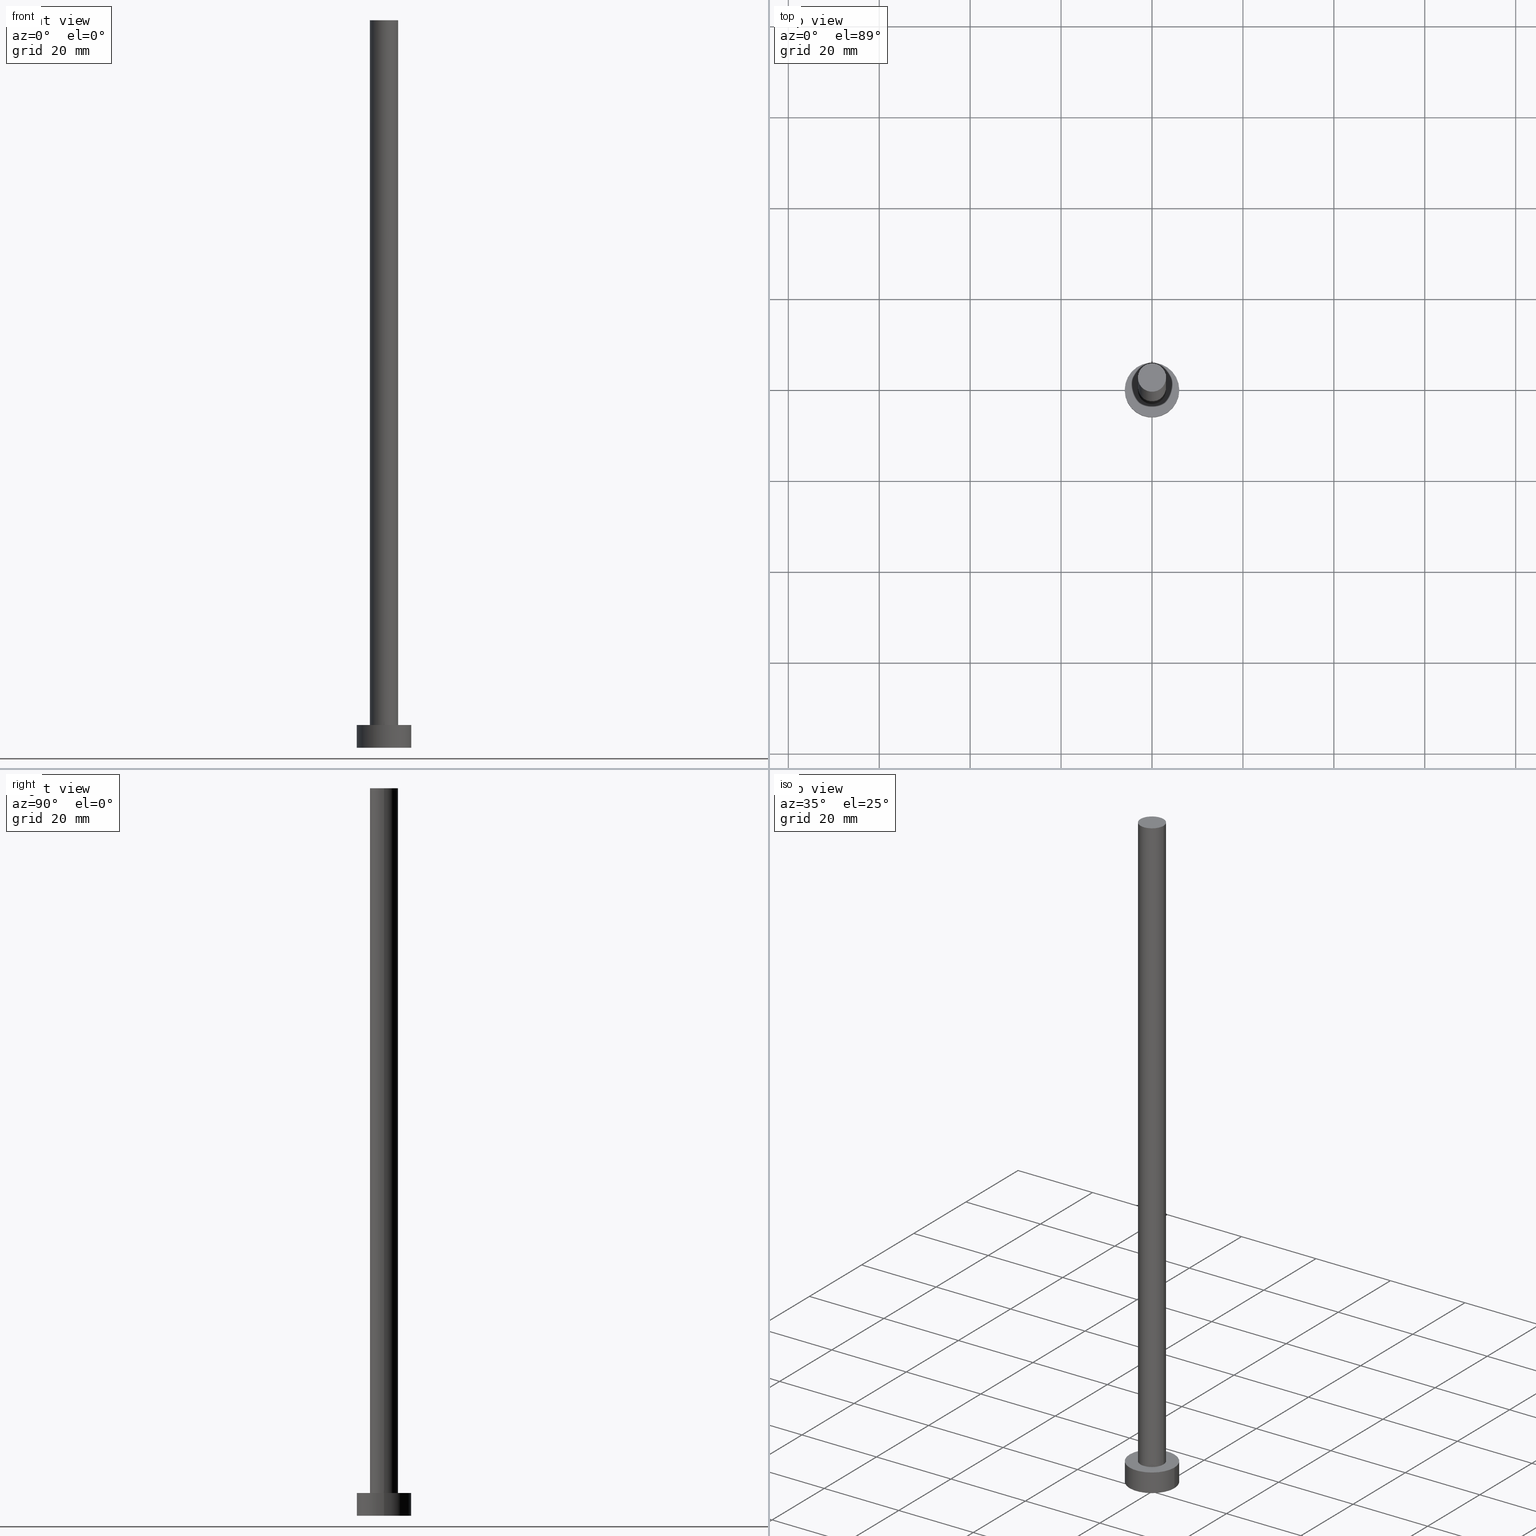
[diagram: canonical four-view strip — front | top / right | iso, engineering-drawing reading convention]
A machine part, canonical four-view strip (front | top / right | iso — engineering-drawing reading convention). The complete STEP part file that produces these views, byte-faithful:
ISO-10303-21;
HEADER;
FILE_DESCRIPTION (( 'STEP AP203' ),
    '1' );
FILE_NAME ('2f2b.STEP',
    '2023-02-13T15:42:57',
    ( '' ),
    ( '' ),
    'SwSTEP 2.0',
    'SolidWorks 2019',
    '' );
FILE_SCHEMA (( 'CONFIG_CONTROL_DESIGN' ));
ENDSEC;

DATA;
#1 = PERSON_AND_ORGANIZATION_ROLE ( 'creator' ) ;
#2 = APPROVAL ( #209, 'NEUR�EN�' ) ;
#3 = VECTOR ( 'NONE', #44, 1000.000000000000000 ) ;
#4 = PERSON_AND_ORGANIZATION_ROLE ( 'creator' ) ;
#5 = EDGE_CURVE ( 'NONE', #112, #130, #16, .T. ) ;
#6 = AXIS2_PLACEMENT_3D ( 'NONE', #60, #85, #42 ) ;
#7 = DIRECTION ( 'NONE',  ( 1.000000000000000000, 0.000000000000000000, -0.000000000000000000 ) ) ;
#8 = PERSON_AND_ORGANIZATION_ROLE ( 'design_supplier' ) ;
#9 = VERTEX_POINT ( 'NONE', #236 ) ;
#10 = ORIENTED_EDGE ( 'NONE', *, *, #141, .T. ) ;
#11 = CIRCLE ( 'NONE', #50, 3.100000000000000089 ) ;
#12 = APPROVAL ( #241, 'NEUR�EN�' ) ;
#13 = EDGE_LOOP ( 'NONE', ( #167, #76, #142, #199 ) ) ;
#14 = DATE_TIME_ROLE ( 'classification_date' ) ;
#15 = CARTESIAN_POINT ( 'NONE',  ( 0.000000000000000000, 0.000000000000000000, 5.000000000000000000 ) ) ;
#16 = CIRCLE ( 'NONE', #124, 3.100000000000000089 ) ;
#17 = DIRECTION ( 'NONE',  ( 1.000000000000000000, 0.000000000000000000, 0.000000000000000000 ) ) ;
#18 = CC_DESIGN_APPROVAL ( #212, ( #46 ) ) ;
#19 = AXIS2_PLACEMENT_3D ( 'NONE', #159, #193, #218 ) ;
#20 = DIRECTION ( 'NONE',  ( 0.000000000000000000, 0.000000000000000000, 1.000000000000000000 ) ) ;
#21 = FACE_OUTER_BOUND ( 'NONE', #34, .T. ) ;
#22 = PERSON_AND_ORGANIZATION ( #145, #208 ) ;
#23 = DIRECTION ( 'NONE',  ( 1.000000000000000000, 0.000000000000000000, 0.000000000000000000 ) ) ;
#24 = EDGE_CURVE ( 'NONE', #223, #255, #11, .T. ) ;
#25 = CARTESIAN_POINT ( 'NONE',  ( -3.100000000000000089, 0.000000000000000000, 5.000000000000000000 ) ) ;
#26 = AXIS2_PLACEMENT_3D ( 'NONE', #84, #169, #7 ) ;
#27 = DIRECTION ( 'NONE',  ( 1.000000000000000000, 0.000000000000000000, -0.000000000000000000 ) ) ;
#28 = PRODUCT_DEFINITION_SHAPE ( 'NONE', 'NONE',  #109 ) ;
#29 = VERTEX_POINT ( 'NONE', #192 ) ;
#30 = EDGE_CURVE ( 'NONE', #9, #226, #77, .T. ) ;
#31 = PERSON_AND_ORGANIZATION ( #145, #208 ) ;
#32 = CALENDAR_DATE ( 2023, 13, 2 ) ;
#33 = EDGE_LOOP ( 'NONE', ( #242, #178 ) ) ;
#34 = EDGE_LOOP ( 'NONE', ( #73, #162 ) ) ;
#35 = CC_DESIGN_DATE_AND_TIME_ASSIGNMENT ( #205, #14, ( #177 ) ) ;
#36 = EDGE_LOOP ( 'NONE', ( #125, #69 ) ) ;
#37 = PERSON_AND_ORGANIZATION_ROLE ( 'classification_officer' ) ;
#38 =( GEOMETRIC_REPRESENTATION_CONTEXT ( 3 ) GLOBAL_UNCERTAINTY_ASSIGNED_CONTEXT ( ( #81 ) ) GLOBAL_UNIT_ASSIGNED_CONTEXT ( ( #93, #151, #116 ) ) REPRESENTATION_CONTEXT ( 'NONE', 'WORKASPACE' ) );
#39 = CC_DESIGN_PERSON_AND_ORGANIZATION_ASSIGNMENT ( #238, #8, ( #46 ) ) ;
#40 = LINE ( 'NONE', #63, #188 ) ;
#41 = CALENDAR_DATE ( 2023, 13, 2 ) ;
#42 = DIRECTION ( 'NONE',  ( -1.000000000000000000, 0.000000000000000000, 0.000000000000000000 ) ) ;
#43 = APPROVAL_DATE_TIME ( #217, #2 ) ;
#44 = DIRECTION ( 'NONE',  ( -0.000000000000000000, -0.000000000000000000, -1.000000000000000000 ) ) ;
#45 = CARTESIAN_POINT ( 'NONE',  ( 0.000000000000000000, 0.000000000000000000, 0.000000000000000000 ) ) ;
#46 = PRODUCT_DEFINITION_FORMATION_WITH_SPECIFIED_SOURCE ( 'LIBOVOLN�', '', #181, .NOT_KNOWN. ) ;
#47 = ADVANCED_FACE ( 'NONE', ( #106 ), #216, .T. ) ;
#48 = DIRECTION ( 'NONE',  ( 0.000000000000000000, 0.000000000000000000, 1.000000000000000000 ) ) ;
#49 = DATE_AND_TIME ( #92, #91 ) ;
#50 = AXIS2_PLACEMENT_3D ( 'NONE', #248, #66, #197 ) ;
#51 = CC_DESIGN_DATE_AND_TIME_ASSIGNMENT ( #198, #202, ( #109 ) ) ;
#52 = DIRECTION ( 'NONE',  ( 1.000000000000000000, 0.000000000000000000, 0.000000000000000000 ) ) ;
#53 = CLOSED_SHELL ( 'NONE', ( #47, #61, #163, #240, #227, #148, #232 ) ) ;
#54 = COORDINATED_UNIVERSAL_TIME_OFFSET ( 1, 0, .AHEAD. ) ;
#55 = APPLICATION_CONTEXT ( 'configuration controlled 3d designs of mechanical parts and assemblies' ) ;
#56 = ADVANCED_BREP_SHAPE_REPRESENTATION ( '2f2b', ( #180, #78 ), #38 ) ;
#57 = CYLINDRICAL_SURFACE ( 'NONE', #19, 3.100000000000000089 ) ;
#58 = DIRECTION ( 'NONE',  ( 1.000000000000000000, 0.000000000000000000, 0.000000000000000000 ) ) ;
#59 = FACE_OUTER_BOUND ( 'NONE', #186, .T. ) ;
#60 = CARTESIAN_POINT ( 'NONE',  ( 0.000000000000000000, 0.000000000000000000, 160.0000000000000000 ) ) ;
#61 = ADVANCED_FACE ( 'NONE', ( #118 ), #229, .T. ) ;
#62 = LOCAL_TIME ( 16, 42, 57.00000000000000000, #135 ) ;
#63 = CARTESIAN_POINT ( 'NONE',  ( -6.000000000000000888, 0.000000000000000000, 5.000000000000000000 ) ) ;
#64 = PERSON_AND_ORGANIZATION ( #145, #208 ) ;
#65 = DIRECTION ( 'NONE',  ( 0.000000000000000000, 0.000000000000000000, 1.000000000000000000 ) ) ;
#66 = DIRECTION ( 'NONE',  ( 0.000000000000000000, 0.000000000000000000, 1.000000000000000000 ) ) ;
#67 = DESIGN_CONTEXT ( 'detailed design', #55, 'design' ) ;
#68 = APPROVAL_STATUS ( 'not_yet_approved' ) ;
#69 = ORIENTED_EDGE ( 'NONE', *, *, #30, .F. ) ;
#70 = APPLICATION_CONTEXT ( 'configuration controlled 3d designs of mechanical parts and assemblies' ) ;
#71 = ORIENTED_EDGE ( 'NONE', *, *, #195, .T. ) ;
#72 = EDGE_CURVE ( 'NONE', #223, #112, #251, .T. ) ;
#73 = ORIENTED_EDGE ( 'NONE', *, *, #113, .T. ) ;
#74 = CC_DESIGN_APPROVAL ( #2, ( #109 ) ) ;
#75 = LOCAL_TIME ( 16, 42, 57.00000000000000000, #54 ) ;
#76 = ORIENTED_EDGE ( 'NONE', *, *, #157, .T. ) ;
#77 = CIRCLE ( 'NONE', #183, 6.000000000000000888 ) ;
#78 = AXIS2_PLACEMENT_3D ( 'NONE', #189, #20, #233 ) ;
#79 = DIRECTION ( 'NONE',  ( 0.000000000000000000, 0.000000000000000000, 1.000000000000000000 ) ) ;
#80 = CARTESIAN_POINT ( 'NONE',  ( 0.000000000000000000, 0.000000000000000000, 0.000000000000000000 ) ) ;
#81 = UNCERTAINTY_MEASURE_WITH_UNIT (LENGTH_MEASURE( 1.000000000000000082E-05 ), #93, 'distance_accuracy_value', 'NONE');
#82 = APPLICATION_PROTOCOL_DEFINITION ( 'international standard', 'config_control_design', 1994, #55 ) ;
#83 = ORIENTED_EDGE ( 'NONE', *, *, #72, .F. ) ;
#84 = CARTESIAN_POINT ( 'NONE',  ( 0.000000000000000000, 0.000000000000000000, 5.000000000000000000 ) ) ;
#85 = DIRECTION ( 'NONE',  ( -0.000000000000000000, -0.000000000000000000, -1.000000000000000000 ) ) ;
#86 = LINE ( 'NONE', #137, #117 ) ;
#87 = AXIS2_PLACEMENT_3D ( 'NONE', #158, #245, #194 ) ;
#88 = CARTESIAN_POINT ( 'NONE',  ( 0.000000000000000000, 0.000000000000000000, 5.000000000000000000 ) ) ;
#89 = CARTESIAN_POINT ( 'NONE',  ( 3.100000000000000089, 3.796405077356794918E-16, 160.0000000000000000 ) ) ;
#90 = APPROVAL_DATE_TIME ( #49, #212 ) ;
#91 = LOCAL_TIME ( 16, 42, 57.00000000000000000, #253 ) ;
#92 = CALENDAR_DATE ( 2023, 13, 2 ) ;
#93 =( LENGTH_UNIT ( ) NAMED_UNIT ( * ) SI_UNIT ( .MILLI., .METRE. ) );
#94 = PERSON_AND_ORGANIZATION ( #145, #208 ) ;
#95 = CALENDAR_DATE ( 2023, 13, 2 ) ;
#96 = DATE_AND_TIME ( #32, #244 ) ;
#97 = CC_DESIGN_PERSON_AND_ORGANIZATION_ASSIGNMENT ( #22, #1, ( #109 ) ) ;
#98 = CARTESIAN_POINT ( 'NONE',  ( -3.100000000000000089, 0.000000000000000000, 160.0000000000000000 ) ) ;
#99 = APPLICATION_PROTOCOL_DEFINITION ( 'international standard', 'config_control_design', 1994, #70 ) ;
#100 = PLANE ( 'NONE',  #26 ) ;
#101 = FACE_OUTER_BOUND ( 'NONE', #36, .T. ) ;
#102 = CARTESIAN_POINT ( 'NONE',  ( 0.000000000000000000, 0.000000000000000000, 5.000000000000000000 ) ) ;
#103 = LOCAL_TIME ( 16, 42, 57.00000000000000000, #139 ) ;
#104 = AXIS2_PLACEMENT_3D ( 'NONE', #230, #48, #58 ) ;
#105 = PERSON_AND_ORGANIZATION ( #145, #208 ) ;
#106 = FACE_OUTER_BOUND ( 'NONE', #243, .T. ) ;
#107 = APPROVAL_ROLE ( '' ) ;
#108 = APPROVAL_PERSON_ORGANIZATION ( #105, #212, #107 ) ;
#109 = PRODUCT_DEFINITION ( 'NEZN�M�', '', #46, #67 ) ;
#110 = ORIENTED_EDGE ( 'NONE', *, *, #157, .F. ) ;
#111 = EDGE_LOOP ( 'NONE', ( #110, #115, #71, #149 ) ) ;
#112 = VERTEX_POINT ( 'NONE', #220 ) ;
#113 = EDGE_CURVE ( 'NONE', #29, #146, #249, .T. ) ;
#114 = ORIENTED_EDGE ( 'NONE', *, *, #5, .T. ) ;
#115 = ORIENTED_EDGE ( 'NONE', *, *, #113, .F. ) ;
#116 =( NAMED_UNIT ( * ) SI_UNIT ( $, .STERADIAN. ) SOLID_ANGLE_UNIT ( ) );
#117 = VECTOR ( 'NONE', #156, 1000.000000000000000 ) ;
#118 = FACE_OUTER_BOUND ( 'NONE', #13, .T. ) ;
#119 = DIRECTION ( 'NONE',  ( -0.000000000000000000, -0.000000000000000000, -1.000000000000000000 ) ) ;
#120 = DIRECTION ( 'NONE',  ( 0.000000000000000000, 0.000000000000000000, 1.000000000000000000 ) ) ;
#121 = AXIS2_PLACEMENT_3D ( 'NONE', #154, #190, #215 ) ;
#122 = CARTESIAN_POINT ( 'NONE',  ( 0.000000000000000000, 0.000000000000000000, 160.0000000000000000 ) ) ;
#123 = PRODUCT_RELATED_PRODUCT_CATEGORY ( 'detail', '', ( #181 ) ) ;
#124 = AXIS2_PLACEMENT_3D ( 'NONE', #15, #170, #246 ) ;
#125 = ORIENTED_EDGE ( 'NONE', *, *, #126, .F. ) ;
#126 = EDGE_CURVE ( 'NONE', #226, #9, #213, .T. ) ;
#127 = APPROVAL_ROLE ( '' ) ;
#128 = AXIS2_PLACEMENT_3D ( 'NONE', #250, #65, #27 ) ;
#129 = AXIS2_PLACEMENT_3D ( 'NONE', #45, #120, #17 ) ;
#130 = VERTEX_POINT ( 'NONE', #25 ) ;
#131 = ORIENTED_EDGE ( 'NONE', *, *, #185, .T. ) ;
#132 = PERSON_AND_ORGANIZATION_ROLE ( 'design_owner' ) ;
#133 = DIRECTION ( 'NONE',  ( -0.000000000000000000, -0.000000000000000000, -1.000000000000000000 ) ) ;
#134 = DIRECTION ( 'NONE',  ( 1.000000000000000000, 0.000000000000000000, 0.000000000000000000 ) ) ;
#135 = COORDINATED_UNIVERSAL_TIME_OFFSET ( 1, 0, .AHEAD. ) ;
#136 = CARTESIAN_POINT ( 'NONE',  ( 3.100000000000000089, 3.796405077356794918E-16, 160.0000000000000000 ) ) ;
#137 = CARTESIAN_POINT ( 'NONE',  ( 6.000000000000000888, 7.347880794884120722E-16, 5.000000000000000000 ) ) ;
#138 = CC_DESIGN_PERSON_AND_ORGANIZATION_ASSIGNMENT ( #235, #4, ( #46 ) ) ;
#139 = COORDINATED_UNIVERSAL_TIME_OFFSET ( 1, 0, .AHEAD. ) ;
#140 = CIRCLE ( 'NONE', #172, 6.000000000000000888 ) ;
#141 = EDGE_CURVE ( 'NONE', #130, #112, #196, .T. ) ;
#142 = ORIENTED_EDGE ( 'NONE', *, *, #30, .T. ) ;
#143 = COORDINATED_UNIVERSAL_TIME_OFFSET ( 1, 0, .AHEAD. ) ;
#144 = ORIENTED_EDGE ( 'NONE', *, *, #141, .F. ) ;
#145 = PERSON ( 'NEUR�EN�', 'NEUR�EN�', 'NEUR�EN�', ('NEUR�EN�'), ('NEUR�EN�'), ('NEUR�EN�') ) ;
#146 = VERTEX_POINT ( 'NONE', #210 ) ;
#147 = APPROVAL_DATE_TIME ( #96, #12 ) ;
#148 = ADVANCED_FACE ( 'NONE', ( #59 ), #57, .T. ) ;
#149 = ORIENTED_EDGE ( 'NONE', *, *, #126, .T. ) ;
#150 = APPROVAL_PERSON_ORGANIZATION ( #64, #2, #171 ) ;
#151 =( NAMED_UNIT ( * ) PLANE_ANGLE_UNIT ( ) SI_UNIT ( $, .RADIAN. ) );
#152 = FACE_OUTER_BOUND ( 'NONE', #111, .T. ) ;
#153 = ORIENTED_EDGE ( 'NONE', *, *, #5, .F. ) ;
#154 = CARTESIAN_POINT ( 'NONE',  ( 0.000000000000000000, 0.000000000000000000, 5.000000000000000000 ) ) ;
#155 = DIRECTION ( 'NONE',  ( -0.000000000000000000, -0.000000000000000000, -1.000000000000000000 ) ) ;
#156 = DIRECTION ( 'NONE',  ( -0.000000000000000000, -0.000000000000000000, -1.000000000000000000 ) ) ;
#157 = EDGE_CURVE ( 'NONE', #146, #9, #86, .T. ) ;
#158 = CARTESIAN_POINT ( 'NONE',  ( 0.000000000000000000, 0.000000000000000000, 0.000000000000000000 ) ) ;
#159 = CARTESIAN_POINT ( 'NONE',  ( 0.000000000000000000, 0.000000000000000000, 160.0000000000000000 ) ) ;
#160 = CALENDAR_DATE ( 2023, 13, 2 ) ;
#161 = ORIENTED_EDGE ( 'NONE', *, *, #24, .F. ) ;
#162 = ORIENTED_EDGE ( 'NONE', *, *, #237, .T. ) ;
#163 = ADVANCED_FACE ( 'NONE', ( #152 ), #174, .T. ) ;
#164 = SECURITY_CLASSIFICATION_LEVEL ( 'unclassified' ) ;
#165 = CC_DESIGN_APPROVAL ( #12, ( #177 ) ) ;
#166 = PLANE ( 'NONE',  #87 ) ;
#167 = ORIENTED_EDGE ( 'NONE', *, *, #237, .F. ) ;
#168 = MECHANICAL_CONTEXT ( 'NONE', #70, 'mechanical' ) ;
#169 = DIRECTION ( 'NONE',  ( 0.000000000000000000, 0.000000000000000000, 1.000000000000000000 ) ) ;
#170 = DIRECTION ( 'NONE',  ( 0.000000000000000000, 0.000000000000000000, 1.000000000000000000 ) ) ;
#171 = APPROVAL_ROLE ( '' ) ;
#172 = AXIS2_PLACEMENT_3D ( 'NONE', #254, #79, #134 ) ;
#173 = FACE_OUTER_BOUND ( 'NONE', #33, .T. ) ;
#174 = CYLINDRICAL_SURFACE ( 'NONE', #184, 6.000000000000000888 ) ;
#175 = DIRECTION ( 'NONE',  ( -0.000000000000000000, -0.000000000000000000, -1.000000000000000000 ) ) ;
#176 = CIRCLE ( 'NONE', #222, 3.100000000000000089 ) ;
#177 = SECURITY_CLASSIFICATION ( '', '', #164 ) ;
#178 = ORIENTED_EDGE ( 'NONE', *, *, #24, .T. ) ;
#179 = CARTESIAN_POINT ( 'NONE',  ( -3.100000000000000089, 0.000000000000000000, 160.0000000000000000 ) ) ;
#180 = MANIFOLD_SOLID_BREP ( 'P�idat vysunut�m3', #53 ) ;
#181 = PRODUCT ( '2f2b', '2f2b', '', ( #168 ) ) ;
#182 = ORIENTED_EDGE ( 'NONE', *, *, #185, .F. ) ;
#183 = AXIS2_PLACEMENT_3D ( 'NONE', #80, #221, #23 ) ;
#184 = AXIS2_PLACEMENT_3D ( 'NONE', #88, #133, #231 ) ;
#185 = EDGE_CURVE ( 'NONE', #255, #130, #228, .T. ) ;
#186 = EDGE_LOOP ( 'NONE', ( #83, #207, #131, #10 ) ) ;
#187 = CARTESIAN_POINT ( 'NONE',  ( -6.000000000000000888, 0.000000000000000000, 0.000000000000000000 ) ) ;
#188 = VECTOR ( 'NONE', #119, 1000.000000000000000 ) ;
#189 = CARTESIAN_POINT ( 'NONE',  ( 0.000000000000000000, 0.000000000000000000, 0.000000000000000000 ) ) ;
#190 = DIRECTION ( 'NONE',  ( 0.000000000000000000, 0.000000000000000000, 1.000000000000000000 ) ) ;
#191 = DIRECTION ( 'NONE',  ( -1.000000000000000000, 0.000000000000000000, 0.000000000000000000 ) ) ;
#192 = CARTESIAN_POINT ( 'NONE',  ( -6.000000000000000888, 0.000000000000000000, 5.000000000000000000 ) ) ;
#193 = DIRECTION ( 'NONE',  ( -0.000000000000000000, -0.000000000000000000, -1.000000000000000000 ) ) ;
#194 = DIRECTION ( 'NONE',  ( 1.000000000000000000, 0.000000000000000000, -0.000000000000000000 ) ) ;
#195 = EDGE_CURVE ( 'NONE', #29, #226, #40, .T. ) ;
#196 = CIRCLE ( 'NONE', #121, 3.100000000000000089 ) ;
#197 = DIRECTION ( 'NONE',  ( 1.000000000000000000, 0.000000000000000000, 0.000000000000000000 ) ) ;
#198 = DATE_AND_TIME ( #160, #103 ) ;
#199 = ORIENTED_EDGE ( 'NONE', *, *, #195, .F. ) ;
#200 = CC_DESIGN_PERSON_AND_ORGANIZATION_ASSIGNMENT ( #247, #132, ( #181 ) ) ;
#201 = DIRECTION ( 'NONE',  ( 0.000000000000000000, 0.000000000000000000, 1.000000000000000000 ) ) ;
#202 = DATE_TIME_ROLE ( 'creation_date' ) ;
#203 = AXIS2_PLACEMENT_3D ( 'NONE', #102, #175, #191 ) ;
#204 = CC_DESIGN_PERSON_AND_ORGANIZATION_ASSIGNMENT ( #31, #37, ( #177 ) ) ;
#205 = DATE_AND_TIME ( #95, #75 ) ;
#206 = ORIENTED_EDGE ( 'NONE', *, *, #72, .T. ) ;
#207 = ORIENTED_EDGE ( 'NONE', *, *, #252, .F. ) ;
#208 = ORGANIZATION ( 'NEUR�EN�', 'NEUR�EN�', '' ) ;
#209 = APPROVAL_STATUS ( 'not_yet_approved' ) ;
#210 = CARTESIAN_POINT ( 'NONE',  ( 6.000000000000000888, 7.347880794884120722E-16, 5.000000000000000000 ) ) ;
#211 = FACE_BOUND ( 'NONE', #239, .T. ) ;
#212 = APPROVAL ( #68, 'NEUR�EN�' ) ;
#213 = CIRCLE ( 'NONE', #129, 6.000000000000000888 ) ;
#214 = APPROVAL_PERSON_ORGANIZATION ( #94, #12, #127 ) ;
#215 = DIRECTION ( 'NONE',  ( 1.000000000000000000, 0.000000000000000000, 0.000000000000000000 ) ) ;
#216 = CYLINDRICAL_SURFACE ( 'NONE', #6, 3.100000000000000089 ) ;
#217 = DATE_AND_TIME ( #41, #62 ) ;
#218 = DIRECTION ( 'NONE',  ( -1.000000000000000000, 0.000000000000000000, 0.000000000000000000 ) ) ;
#219 = VECTOR ( 'NONE', #155, 1000.000000000000000 ) ;
#220 = CARTESIAN_POINT ( 'NONE',  ( 3.100000000000000089, 3.796405077356794918E-16, 5.000000000000000000 ) ) ;
#221 = DIRECTION ( 'NONE',  ( 0.000000000000000000, 0.000000000000000000, 1.000000000000000000 ) ) ;
#222 = AXIS2_PLACEMENT_3D ( 'NONE', #122, #201, #52 ) ;
#223 = VERTEX_POINT ( 'NONE', #136 ) ;
#224 = CC_DESIGN_SECURITY_CLASSIFICATION ( #177, ( #46 ) ) ;
#225 = SHAPE_DEFINITION_REPRESENTATION ( #28, #56 ) ;
#226 = VERTEX_POINT ( 'NONE', #187 ) ;
#227 = ADVANCED_FACE ( 'NONE', ( #101 ), #166, .F. ) ;
#228 = LINE ( 'NONE', #98, #3 ) ;
#229 = CYLINDRICAL_SURFACE ( 'NONE', #203, 6.000000000000000888 ) ;
#230 = CARTESIAN_POINT ( 'NONE',  ( 0.000000000000000000, 0.000000000000000000, 5.000000000000000000 ) ) ;
#231 = DIRECTION ( 'NONE',  ( -1.000000000000000000, 0.000000000000000000, 0.000000000000000000 ) ) ;
#232 = ADVANCED_FACE ( 'NONE', ( #173 ), #234, .T. ) ;
#233 = DIRECTION ( 'NONE',  ( 1.000000000000000000, 0.000000000000000000, 0.000000000000000000 ) ) ;
#234 = PLANE ( 'NONE',  #128 ) ;
#235 = PERSON_AND_ORGANIZATION ( #145, #208 ) ;
#236 = CARTESIAN_POINT ( 'NONE',  ( 6.000000000000000888, 7.347880794884120722E-16, 0.000000000000000000 ) ) ;
#237 = EDGE_CURVE ( 'NONE', #146, #29, #140, .T. ) ;
#238 = PERSON_AND_ORGANIZATION ( #145, #208 ) ;
#239 = EDGE_LOOP ( 'NONE', ( #144, #153 ) ) ;
#240 = ADVANCED_FACE ( 'NONE', ( #211, #21 ), #100, .T. ) ;
#241 = APPROVAL_STATUS ( 'not_yet_approved' ) ;
#242 = ORIENTED_EDGE ( 'NONE', *, *, #252, .T. ) ;
#243 = EDGE_LOOP ( 'NONE', ( #161, #206, #114, #182 ) ) ;
#244 = LOCAL_TIME ( 16, 42, 57.00000000000000000, #143 ) ;
#245 = DIRECTION ( 'NONE',  ( 0.000000000000000000, 0.000000000000000000, 1.000000000000000000 ) ) ;
#246 = DIRECTION ( 'NONE',  ( 1.000000000000000000, 0.000000000000000000, 0.000000000000000000 ) ) ;
#247 = PERSON_AND_ORGANIZATION ( #145, #208 ) ;
#248 = CARTESIAN_POINT ( 'NONE',  ( 0.000000000000000000, 0.000000000000000000, 160.0000000000000000 ) ) ;
#249 = CIRCLE ( 'NONE', #104, 6.000000000000000888 ) ;
#250 = CARTESIAN_POINT ( 'NONE',  ( 0.000000000000000000, 0.000000000000000000, 160.0000000000000000 ) ) ;
#251 = LINE ( 'NONE', #89, #219 ) ;
#252 = EDGE_CURVE ( 'NONE', #255, #223, #176, .T. ) ;
#253 = COORDINATED_UNIVERSAL_TIME_OFFSET ( 1, 0, .AHEAD. ) ;
#254 = CARTESIAN_POINT ( 'NONE',  ( 0.000000000000000000, 0.000000000000000000, 5.000000000000000000 ) ) ;
#255 = VERTEX_POINT ( 'NONE', #179 ) ;
ENDSEC;
END-ISO-10303-21;
